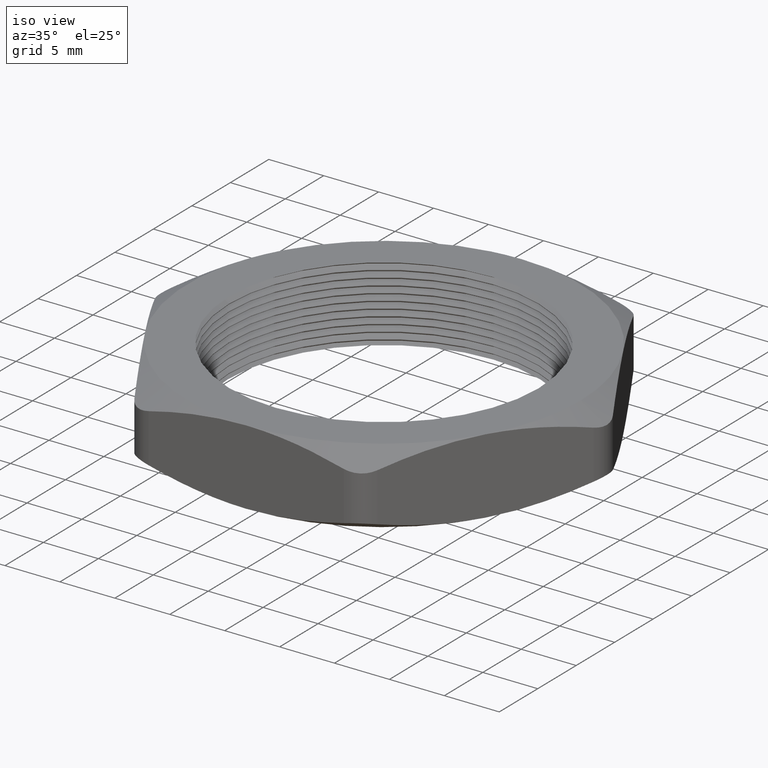
[diagram: clean part render]
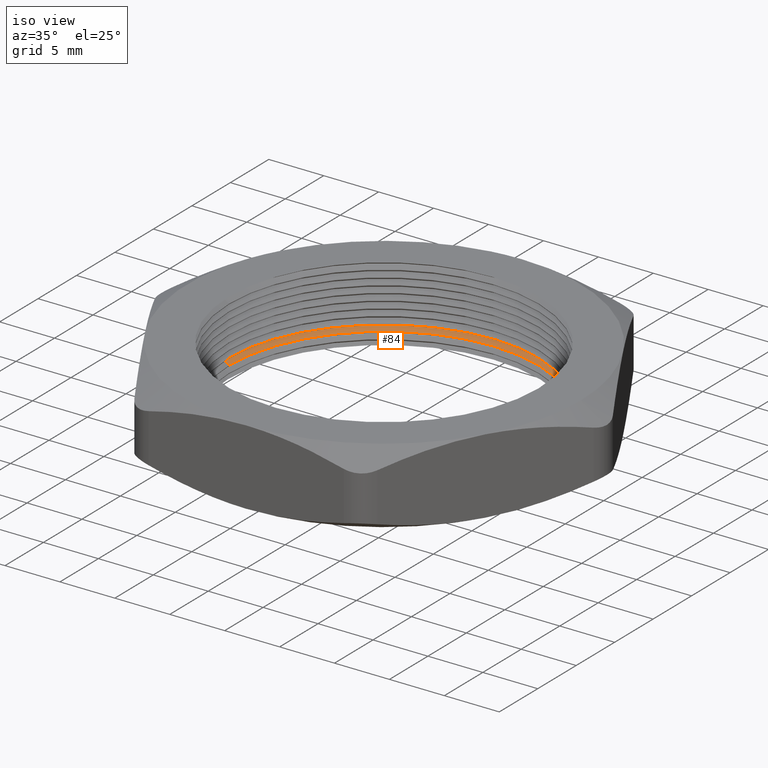
[diagram: same view with one face highlighted and labeled with its STEP entity id]
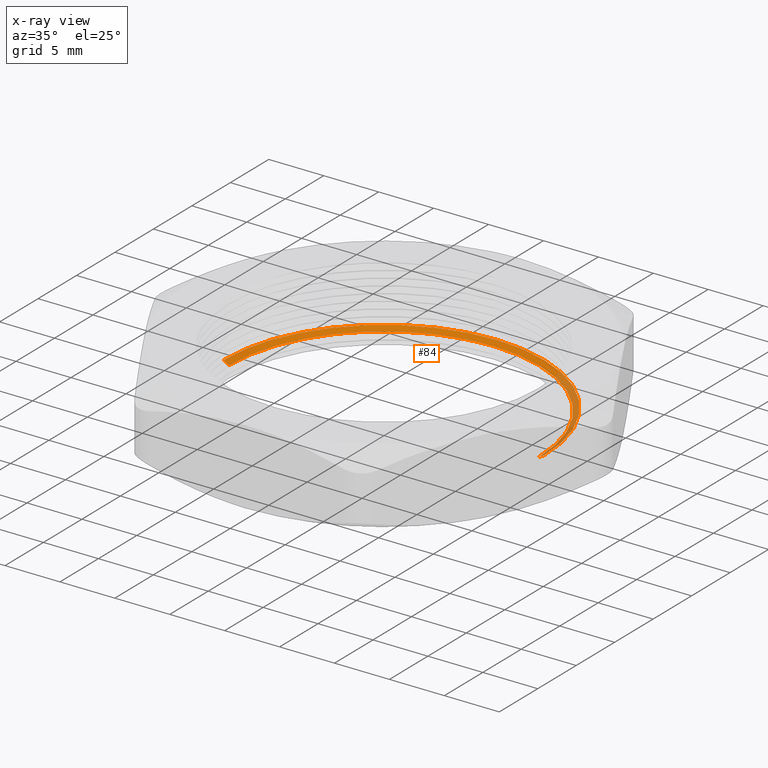
[diagram: x-ray of the same camera — body ghosted, the highlighted face saturated]
A machine part, iso view. The second image highlights one B-rep face of the part: STEP entity #84.
The next image is the same camera in x-ray: the body ghosted, the highlighted face saturated — about 18% of this face is hidden behind the body in this view.
In plain terms, the highlighted conical surface has half-angle 60 deg.
Its self-contained STEP definition (entity closure, byte-faithful):
#83 = EDGE_CURVE ( 'NONE', #992, #921, #314, .T. ) ;
#84 = ADVANCED_FACE ( 'NONE', ( #306 ), #305, .F. ) ;
#85 = EDGE_LOOP ( 'NONE', ( #86, #87, #88, #89 ) ) ;
#86 = ORIENTED_EDGE ( 'NONE', *, *, #920, .F. ) ;
#87 = ORIENTED_EDGE ( 'NONE', *, *, #885, .F. ) ;
#88 = ORIENTED_EDGE ( 'NONE', *, *, #1043, .T. ) ;
#89 = ORIENTED_EDGE ( 'NONE', *, *, #83, .T. ) ;
#300 = DIRECTION ( 'NONE',  ( 1.000000000000000000, 0.0000000000000000000, 0.0000000000000000000 ) ) ;
#301 = DIRECTION ( 'NONE',  ( 0.0000000000000000000, 0.0000000000000000000, 1.000000000000000000 ) ) ;
#302 = CARTESIAN_POINT ( 'NONE',  ( 0.0000000000000000000, 0.0000000000000000000, 0.04690598923241517300 ) ) ;
#303 = AXIS2_PLACEMENT_3D ( 'NONE', #302, #301, #300 ) ;
#305 = CONICAL_SURFACE ( 'NONE', #303, 0.5550000000000000500, 1.047197551196593400 ) ;
#306 = FACE_OUTER_BOUND ( 'NONE', #85, .T. ) ;
#307 = DIRECTION ( 'NONE',  ( 1.000000000000000000, 0.0000000000000000000, 0.0000000000000000000 ) ) ;
#308 = DIRECTION ( 'NONE',  ( 0.0000000000000000000, 0.0000000000000000000, 1.000000000000000000 ) ) ;
#309 = CARTESIAN_POINT ( 'NONE',  ( 0.0000000000000000000, 0.0000000000000000000, 0.05845299461620776000 ) ) ;
#310 = AXIS2_PLACEMENT_3D ( 'NONE', #309, #308, #307 ) ;
#314 = CIRCLE ( 'NONE', #310, 0.5750000000000000700 ) ;
#885 = EDGE_CURVE ( 'NONE', #918, #917, #1663, .T. ) ;
#917 = VERTEX_POINT ( 'NONE', #1727 ) ;
#918 = VERTEX_POINT ( 'NONE', #1726 ) ;
#920 = EDGE_CURVE ( 'NONE', #917, #921, #1725, .T. ) ;
#921 = VERTEX_POINT ( 'NONE', #1721 ) ;
#992 = VERTEX_POINT ( 'NONE', #1892 ) ;
#1043 = EDGE_CURVE ( 'NONE', #918, #992, #1975, .T. ) ;
#1660 = DIRECTION ( 'NONE',  ( 1.000000000000000000, 0.0000000000000000000, 0.0000000000000000000 ) ) ;
#1661 = DIRECTION ( 'NONE',  ( 0.0000000000000000000, 0.0000000000000000000, 1.000000000000000000 ) ) ;
#1662 = AXIS2_PLACEMENT_3D ( 'NONE', #1669, #1661, #1660 ) ;
#1663 = CIRCLE ( 'NONE', #1662, 0.5550000000000000500 ) ;
#1669 = CARTESIAN_POINT ( 'NONE',  ( 0.0000000000000000000, 0.0000000000000000000, 0.04690598923241517300 ) ) ;
#1721 = CARTESIAN_POINT ( 'NONE',  ( -0.5750000000000000700, 0.0000000000000000000, 0.05845299461620776000 ) ) ;
#1722 = DIRECTION ( 'NONE',  ( -0.8660254037844364900, 1.060575238724904300E-016, 0.5000000000000037700 ) ) ;
#1723 = VECTOR ( 'NONE', #1722, 39.37007874015748100 ) ;
#1724 = CARTESIAN_POINT ( 'NONE',  ( -0.5550000000000000500, 6.796789735267811300E-017, 0.04690598923241517300 ) ) ;
#1725 = LINE ( 'NONE', #1724, #1723 ) ;
#1726 = CARTESIAN_POINT ( 'NONE',  ( 0.5550000000000001600, 6.796789735267812500E-017, 0.04690598923241517300 ) ) ;
#1727 = CARTESIAN_POINT ( 'NONE',  ( -0.5550000000000001600, 0.0000000000000000000, 0.04690598923241517300 ) ) ;
#1892 = CARTESIAN_POINT ( 'NONE',  ( 0.5750000000000000700, 7.041719095097281400E-017, 0.05845299461620776000 ) ) ;
#1972 = DIRECTION ( 'NONE',  ( 0.8660254037844364900, 0.0000000000000000000, 0.5000000000000037700 ) ) ;
#1973 = VECTOR ( 'NONE', #1972, 39.37007874015748100 ) ;
#1974 = CARTESIAN_POINT ( 'NONE',  ( 0.5550000000000000500, 0.0000000000000000000, 0.04690598923241517300 ) ) ;
#1975 = LINE ( 'NONE', #1974, #1973 ) ;